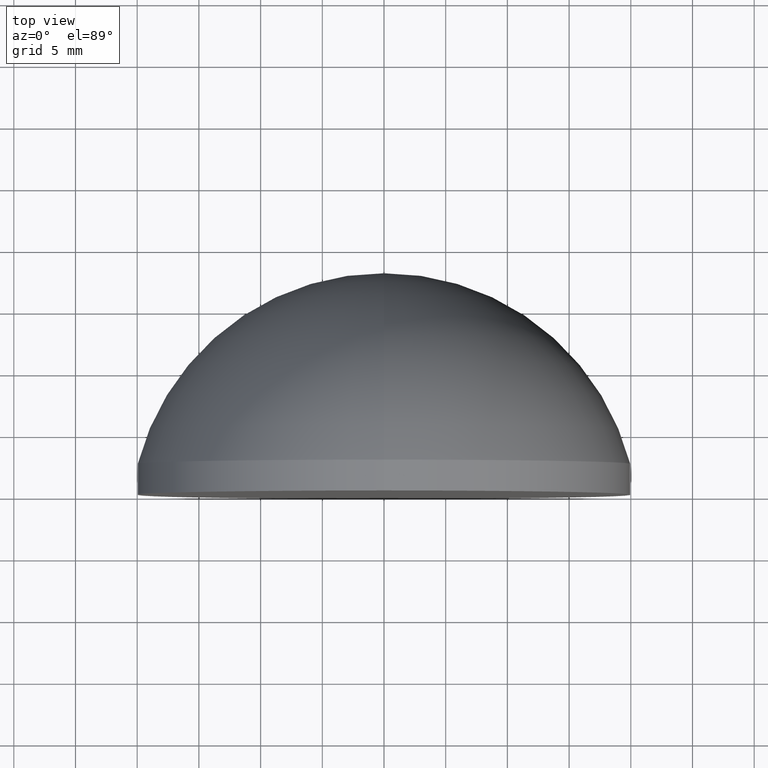
[diagram: clean part render]
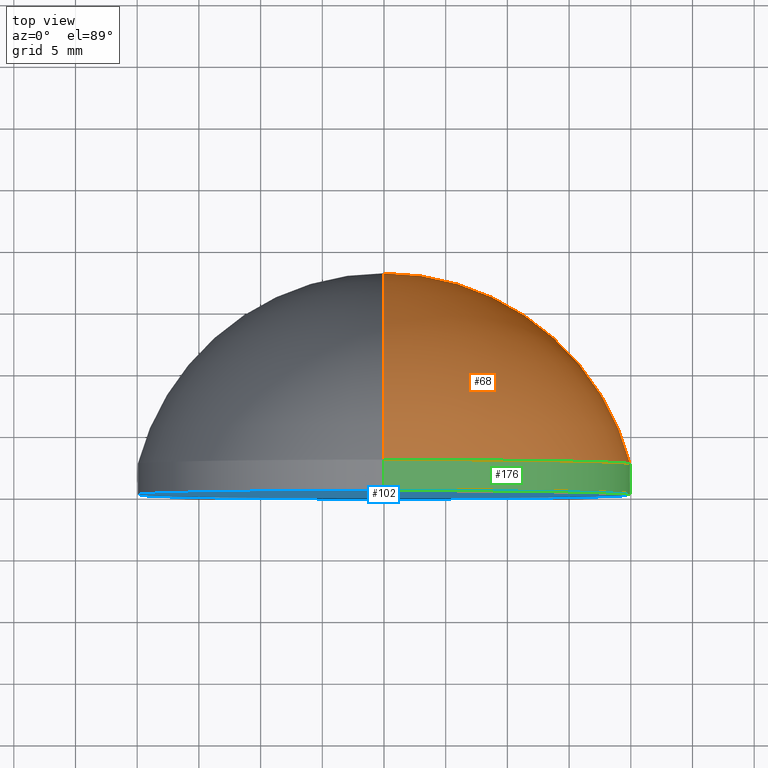
[diagram: same view with three faces highlighted in distinct colors, each labeled with its STEP entity id]
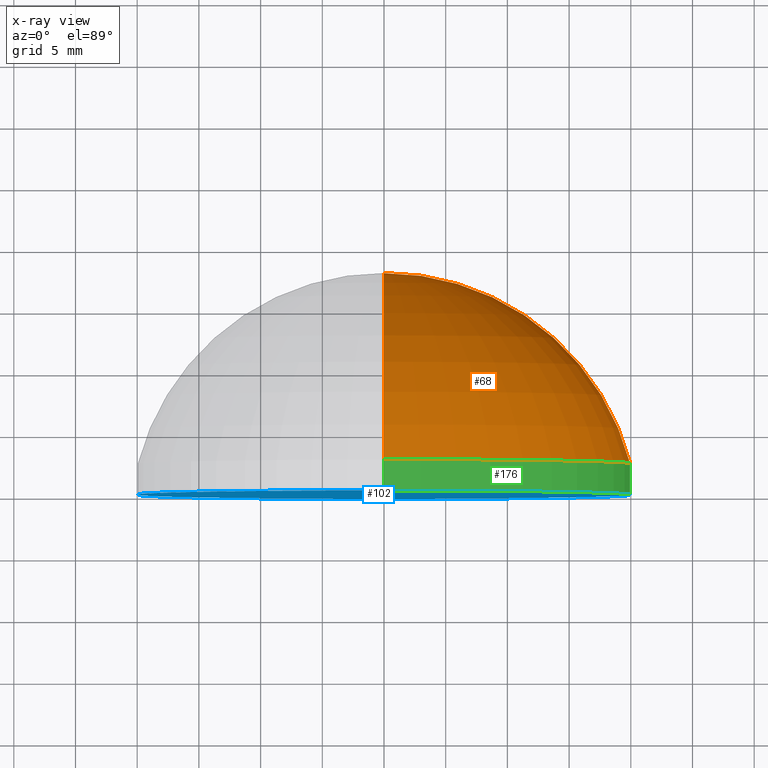
[diagram: x-ray of the same camera — body ghosted, the three highlighted faces saturated]
A machine part, top view with three faces highlighted in distinct colors.
The next image is the same camera in x-ray (body ghosted, the three faces saturated) — at least one of them is partly hidden behind the body in this view.
Their STEP definitions:

[orange] entity #68 — the highlighted toroidal blend (fillet) surface has major radius 0 mm and minor (blend) radius 20.67 mm.
#6 = DIRECTION ( 'NONE',  ( -1.000000000000000000, 0.000000000000000000, 0.000000000000000000 ) ) ;
#7 = EDGE_CURVE ( 'NONE', #145, #161, #54, .T. ) ;
#8 = ORIENTED_EDGE ( 'NONE', *, *, #172, .T. ) ;
#11 = CIRCLE ( 'NONE', #15, 20.67000000000000881 ) ;
#14 = CARTESIAN_POINT ( 'NONE',  ( 2.449293598294706513E-15, 2.499999999999996891, -20.00000000000000000 ) ) ;
#15 = AXIS2_PLACEMENT_3D ( 'NONE', #112, #182, #136 ) ;
#16 = CARTESIAN_POINT ( 'NONE',  ( 0.000000000000000000, 2.499999999999996891, 20.00000000000000000 ) ) ;
#42 = CARTESIAN_POINT ( 'NONE',  ( 0.000000000000000000, 17.94999999999999929, 0.000000000000000000 ) ) ;
#47 = DIRECTION ( 'NONE',  ( -0.000000000000000000, 1.000000000000000000, -0.000000000000000000 ) ) ;
#50 = CIRCLE ( 'NONE', #124, 20.00000000000000000 ) ;
#54 = CIRCLE ( 'NONE', #81, 20.67000000000000881 ) ;
#57 = DIRECTION ( 'NONE',  ( 0.000000000000000000, 0.000000000000000000, 1.000000000000000000 ) ) ;
#66 = EDGE_LOOP ( 'NONE', ( #191, #8, #193 ) ) ;
#68 = ADVANCED_FACE ( 'NONE', ( #194 ), #92, .T. ) ;
#81 = AXIS2_PLACEMENT_3D ( 'NONE', #148, #6, #120 ) ;
#90 = CARTESIAN_POINT ( 'NONE',  ( 0.000000000000000000, 2.499999999999996891, 0.000000000000000000 ) ) ;
#92 = TOROIDAL_SURFACE ( 'NONE', #198, -1.249999708602400617E-05, 20.67000000000000881 ) ;
#99 = CARTESIAN_POINT ( 'NONE',  ( 0.000000000000000000, -2.719999999996225437, 0.000000000000000000 ) ) ;
#112 = CARTESIAN_POINT ( 'NONE',  ( -1.530808142075054168E-21, -2.719999999996225437, 1.249999708602400617E-05 ) ) ;
#119 = DIRECTION ( 'NONE',  ( -0.000000000000000000, 1.000000000000000000, -0.000000000000000000 ) ) ;
#120 = DIRECTION ( 'NONE',  ( 0.000000000000000000, 0.000000000000000000, 1.000000000000000000 ) ) ;
#124 = AXIS2_PLACEMENT_3D ( 'NONE', #90, #47, #57 ) ;
#136 = DIRECTION ( 'NONE',  ( 1.224646799147353207E-16, 0.000000000000000000, -1.000000000000000000 ) ) ;
#145 = VERTEX_POINT ( 'NONE', #16 ) ;
#148 = CARTESIAN_POINT ( 'NONE',  ( 0.000000000000000000, -2.719999999996225437, -1.249999708602400617E-05 ) ) ;
#155 = EDGE_CURVE ( 'NONE', #145, #175, #50, .T. ) ;
#161 = VERTEX_POINT ( 'NONE', #42 ) ;
#172 = EDGE_CURVE ( 'NONE', #175, #161, #11, .T. ) ;
#175 = VERTEX_POINT ( 'NONE', #14 ) ;
#178 = DIRECTION ( 'NONE',  ( 0.000000000000000000, 0.000000000000000000, 1.000000000000000000 ) ) ;
#182 = DIRECTION ( 'NONE',  ( 1.000000000000000000, 0.000000000000000000, 1.224646799147353207E-16 ) ) ;
#191 = ORIENTED_EDGE ( 'NONE', *, *, #155, .T. ) ;
#193 = ORIENTED_EDGE ( 'NONE', *, *, #7, .F. ) ;
#194 = FACE_OUTER_BOUND ( 'NONE', #66, .T. ) ;
#198 = AXIS2_PLACEMENT_3D ( 'NONE', #99, #119, #178 ) ;

[blue] entity #102 — the highlighted planar face has unit normal (0, -1, 0).
#4 = CIRCLE ( 'NONE', #167, 20.00000000000000000 ) ;
#10 = VERTEX_POINT ( 'NONE', #40 ) ;
#24 = CARTESIAN_POINT ( 'NONE',  ( 0.000000000000000000, -3.469446951953614189E-15, 0.000000000000000000 ) ) ;
#32 = DIRECTION ( 'NONE',  ( -0.000000000000000000, 1.000000000000000000, -0.000000000000000000 ) ) ;
#36 = CARTESIAN_POINT ( 'NONE',  ( 0.000000000000000000, -3.469446951953614189E-15, 20.00000000000000000 ) ) ;
#39 = DIRECTION ( 'NONE',  ( 0.000000000000000000, -1.000000000000000000, 0.000000000000000000 ) ) ;
#40 = CARTESIAN_POINT ( 'NONE',  ( 2.449293598294706513E-15, -3.469446951953614189E-15, -20.00000000000000000 ) ) ;
#52 = EDGE_LOOP ( 'NONE', ( #85, #129 ) ) ;
#82 = DIRECTION ( 'NONE',  ( -0.000000000000000000, 1.000000000000000000, -0.000000000000000000 ) ) ;
#85 = ORIENTED_EDGE ( 'NONE', *, *, #192, .F. ) ;
#94 = DIRECTION ( 'NONE',  ( 0.000000000000000000, 0.000000000000000000, 1.000000000000000000 ) ) ;
#100 = AXIS2_PLACEMENT_3D ( 'NONE', #121, #32, #94 ) ;
#102 = ADVANCED_FACE ( 'NONE', ( #147 ), #158, .T. ) ;
#104 = VERTEX_POINT ( 'NONE', #36 ) ;
#105 = DIRECTION ( 'NONE',  ( 0.000000000000000000, -0.000000000000000000, -1.000000000000000000 ) ) ;
#121 = CARTESIAN_POINT ( 'NONE',  ( 0.000000000000000000, -3.469446951953614189E-15, 0.000000000000000000 ) ) ;
#127 = AXIS2_PLACEMENT_3D ( 'NONE', #144, #39, #105 ) ;
#128 = EDGE_CURVE ( 'NONE', #10, #104, #4, .T. ) ;
#129 = ORIENTED_EDGE ( 'NONE', *, *, #128, .F. ) ;
#144 = CARTESIAN_POINT ( 'NONE',  ( 0.000000000000000000, -1.224646799147353256E-15, 0.000000000000000000 ) ) ;
#147 = FACE_OUTER_BOUND ( 'NONE', #52, .T. ) ;
#158 = PLANE ( 'NONE',  #127 ) ;
#163 = CIRCLE ( 'NONE', #100, 20.00000000000000000 ) ;
#167 = AXIS2_PLACEMENT_3D ( 'NONE', #24, #82, #195 ) ;
#192 = EDGE_CURVE ( 'NONE', #104, #10, #163, .T. ) ;
#195 = DIRECTION ( 'NONE',  ( 0.000000000000000000, 0.000000000000000000, 1.000000000000000000 ) ) ;

[green] entity #176 — the highlighted cylindrical surface (partial cylindrical patch) has radius 20 mm, axis along (-0, 1, -0).
#3 = LINE ( 'NONE', #188, #143 ) ;
#10 = VERTEX_POINT ( 'NONE', #40 ) ;
#14 = CARTESIAN_POINT ( 'NONE',  ( 2.449293598294706513E-15, 2.499999999999996891, -20.00000000000000000 ) ) ;
#16 = CARTESIAN_POINT ( 'NONE',  ( 0.000000000000000000, 2.499999999999996891, 20.00000000000000000 ) ) ;
#25 = ORIENTED_EDGE ( 'NONE', *, *, #155, .F. ) ;
#30 = CYLINDRICAL_SURFACE ( 'NONE', #41, 20.00000000000000000 ) ;
#32 = DIRECTION ( 'NONE',  ( -0.000000000000000000, 1.000000000000000000, -0.000000000000000000 ) ) ;
#36 = CARTESIAN_POINT ( 'NONE',  ( 0.000000000000000000, -3.469446951953614189E-15, 20.00000000000000000 ) ) ;
#40 = CARTESIAN_POINT ( 'NONE',  ( 2.449293598294706513E-15, -3.469446951953614189E-15, -20.00000000000000000 ) ) ;
#41 = AXIS2_PLACEMENT_3D ( 'NONE', #111, #137, #72 ) ;
#44 = FACE_OUTER_BOUND ( 'NONE', #159, .T. ) ;
#47 = DIRECTION ( 'NONE',  ( -0.000000000000000000, 1.000000000000000000, -0.000000000000000000 ) ) ;
#50 = CIRCLE ( 'NONE', #124, 20.00000000000000000 ) ;
#57 = DIRECTION ( 'NONE',  ( 0.000000000000000000, 0.000000000000000000, 1.000000000000000000 ) ) ;
#59 = VECTOR ( 'NONE', #118, 1000.000000000000000 ) ;
#60 = EDGE_CURVE ( 'NONE', #104, #145, #149, .T. ) ;
#65 = CARTESIAN_POINT ( 'NONE',  ( 0.000000000000000000, 17.94999999999999929, 20.00000000000000000 ) ) ;
#72 = DIRECTION ( 'NONE',  ( 0.000000000000000000, 0.000000000000000000, 1.000000000000000000 ) ) ;
#87 = ORIENTED_EDGE ( 'NONE', *, *, #192, .T. ) ;
#90 = CARTESIAN_POINT ( 'NONE',  ( 0.000000000000000000, 2.499999999999996891, 0.000000000000000000 ) ) ;
#94 = DIRECTION ( 'NONE',  ( 0.000000000000000000, 0.000000000000000000, 1.000000000000000000 ) ) ;
#100 = AXIS2_PLACEMENT_3D ( 'NONE', #121, #32, #94 ) ;
#104 = VERTEX_POINT ( 'NONE', #36 ) ;
#109 = EDGE_CURVE ( 'NONE', #10, #175, #3, .T. ) ;
#111 = CARTESIAN_POINT ( 'NONE',  ( 0.000000000000000000, 17.94999999999999929, 0.000000000000000000 ) ) ;
#118 = DIRECTION ( 'NONE',  ( -0.000000000000000000, 1.000000000000000000, -0.000000000000000000 ) ) ;
#121 = CARTESIAN_POINT ( 'NONE',  ( 0.000000000000000000, -3.469446951953614189E-15, 0.000000000000000000 ) ) ;
#124 = AXIS2_PLACEMENT_3D ( 'NONE', #90, #47, #57 ) ;
#132 = ORIENTED_EDGE ( 'NONE', *, *, #60, .F. ) ;
#137 = DIRECTION ( 'NONE',  ( -0.000000000000000000, 1.000000000000000000, -0.000000000000000000 ) ) ;
#143 = VECTOR ( 'NONE', #174, 1000.000000000000000 ) ;
#145 = VERTEX_POINT ( 'NONE', #16 ) ;
#149 = LINE ( 'NONE', #65, #59 ) ;
#155 = EDGE_CURVE ( 'NONE', #145, #175, #50, .T. ) ;
#159 = EDGE_LOOP ( 'NONE', ( #87, #189, #25, #132 ) ) ;
#163 = CIRCLE ( 'NONE', #100, 20.00000000000000000 ) ;
#174 = DIRECTION ( 'NONE',  ( -0.000000000000000000, 1.000000000000000000, -0.000000000000000000 ) ) ;
#175 = VERTEX_POINT ( 'NONE', #14 ) ;
#176 = ADVANCED_FACE ( 'NONE', ( #44 ), #30, .T. ) ;
#188 = CARTESIAN_POINT ( 'NONE',  ( 2.449293598294706513E-15, 17.94999999999999929, -20.00000000000000000 ) ) ;
#189 = ORIENTED_EDGE ( 'NONE', *, *, #109, .T. ) ;
#192 = EDGE_CURVE ( 'NONE', #104, #10, #163, .T. ) ;